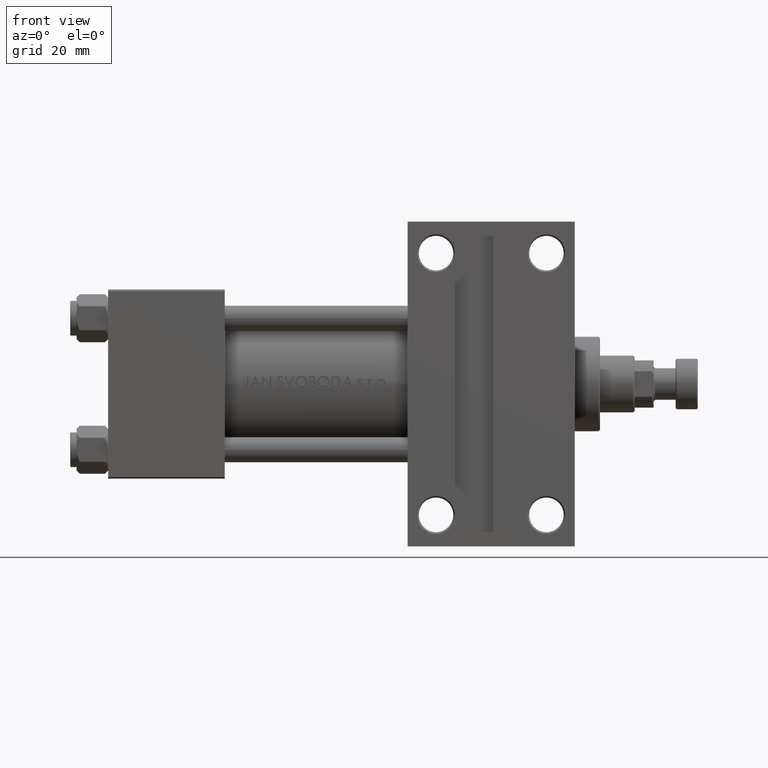
[diagram: clean part render]
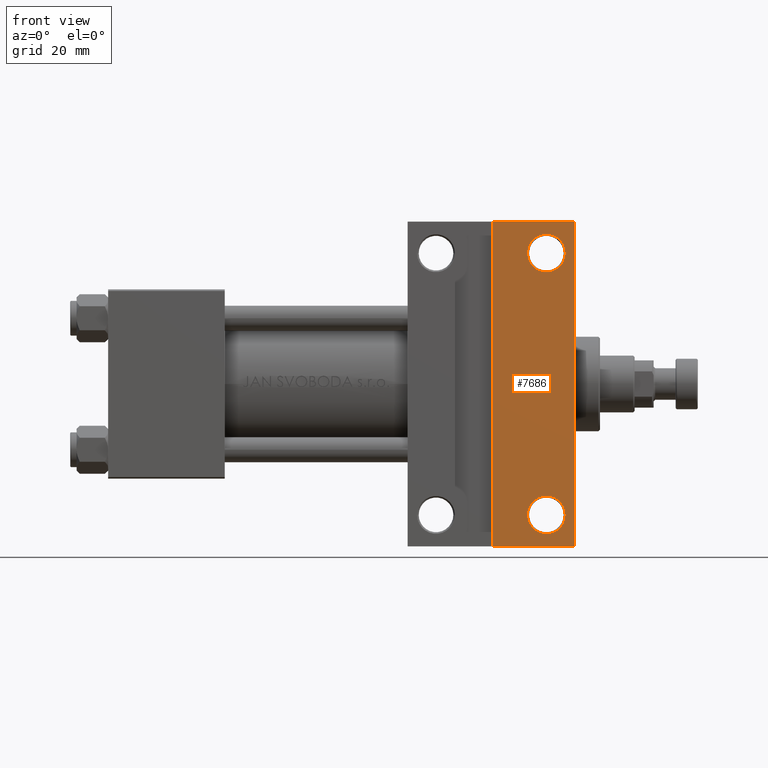
[diagram: same view with one face highlighted and labeled with its STEP entity id]
A machine part, front view. The second image highlights one B-rep face of the part: STEP entity #7686.
In plain terms, the highlighted planar face has unit normal (0, -1, -0).
Its self-contained STEP definition (entity closure, byte-faithful):
#470 = EDGE_CURVE ( 'NONE', #43863, #43570, #29945, .T. ) ;
#1043 = ORIENTED_EDGE ( 'NONE', *, *, #7008, .T. ) ;
#2409 = ORIENTED_EDGE ( 'NONE', *, *, #46670, .T. ) ;
#4368 = VERTEX_POINT ( 'NONE', #41086 ) ;
#5705 = EDGE_CURVE ( 'NONE', #43863, #46062, #18830, .T. ) ;
#5989 = CARTESIAN_POINT ( 'NONE',  ( 94.99999999999998579, -51.50000000000000711, -29.99999999999999645 ) ) ;
#6105 = DIRECTION ( 'NONE',  ( -0.000000000000000000, -1.156482317317871478E-16, 1.000000000000000000 ) ) ;
#7008 = EDGE_CURVE ( 'NONE', #45161, #4368, #12345, .T. ) ;
#7355 = AXIS2_PLACEMENT_3D ( 'NONE', #46388, #31975, #13056 ) ;
#7686 = ADVANCED_FACE ( 'NONE', ( #34189, #11782, #27204 ), #41887, .T. ) ;
#8244 = CIRCLE ( 'NONE', #36062, 5.999499999999990507 ) ;
#9198 = DIRECTION ( 'NONE',  ( -0.000000000000000000, -1.156482317317871478E-16, 1.000000000000000000 ) ) ;
#11659 = CARTESIAN_POINT ( 'NONE',  ( 133.0004999999999598, -41.50000000000000000, -30.00000000000000000 ) ) ;
#11782 = FACE_BOUND ( 'NONE', #23320, .T. ) ;
#12123 = AXIS2_PLACEMENT_3D ( 'NONE', #20894, #9198, #32100 ) ;
#12274 = DIRECTION ( 'NONE',  ( 0.000000000000000000, 1.000000000000000000, 1.156482317317871478E-16 ) ) ;
#12345 = CIRCLE ( 'NONE', #31386, 5.999499999999962974 ) ;
#13056 = DIRECTION ( 'NONE',  ( 0.000000000000000000, 1.000000000000000000, 0.000000000000000000 ) ) ;
#13891 = VECTOR ( 'NONE', #38213, 1000.000000000000000 ) ;
#14583 = ORIENTED_EDGE ( 'NONE', *, *, #39681, .T. ) ;
#14762 = AXIS2_PLACEMENT_3D ( 'NONE', #26956, #42125, #12274 ) ;
#15815 = VECTOR ( 'NONE', #36328, 1000.000000000000000 ) ;
#16492 = VERTEX_POINT ( 'NONE', #11659 ) ;
#16803 = CARTESIAN_POINT ( 'NONE',  ( 121.9999999999999858, -51.49999999999999289, -29.99999999999999645 ) ) ;
#18383 = ORIENTED_EDGE ( 'NONE', *, *, #23153, .T. ) ;
#18498 = CARTESIAN_POINT ( 'NONE',  ( 95.00000000000000000, 51.50000000000000711, -29.99999999999999645 ) ) ;
#18830 = LINE ( 'NONE', #34009, #13891 ) ;
#19888 = EDGE_CURVE ( 'NONE', #28436, #46062, #19980, .T. ) ;
#19980 = LINE ( 'NONE', #5989, #15815 ) ;
#20522 = DIRECTION ( 'NONE',  ( 0.000000000000000000, -1.000000000000000000, -1.156482317317871478E-16 ) ) ;
#20894 = CARTESIAN_POINT ( 'NONE',  ( 138.9999999999999432, -41.50000000000000000, -30.00000000000000000 ) ) ;
#23153 = EDGE_CURVE ( 'NONE', #43570, #28436, #39435, .T. ) ;
#23320 = EDGE_LOOP ( 'NONE', ( #14583, #2409 ) ) ;
#24723 = VECTOR ( 'NONE', #41615, 1000.000000000000000 ) ;
#25000 = CARTESIAN_POINT ( 'NONE',  ( 138.9999999999999432, -41.50000000000000000, -30.00000000000000000 ) ) ;
#25792 = CARTESIAN_POINT ( 'NONE',  ( 144.9994999999999550, -41.50000000000000000, -30.00000000000000000 ) ) ;
#26436 = ORIENTED_EDGE ( 'NONE', *, *, #470, .T. ) ;
#26956 = CARTESIAN_POINT ( 'NONE',  ( 148.0000000000000000, 30.00000000000000000, -29.99999999999999289 ) ) ;
#27204 = FACE_BOUND ( 'NONE', #47421, .T. ) ;
#27510 = CARTESIAN_POINT ( 'NONE',  ( 148.0000000000000000, 30.00000000000000000, -29.99999999999999289 ) ) ;
#28075 = CARTESIAN_POINT ( 'NONE',  ( 148.0000000000000000, 51.49999999999999289, -29.99999999999999645 ) ) ;
#28121 = CARTESIAN_POINT ( 'NONE',  ( 148.0000000000000000, -51.50000000000000711, -29.99999999999999645 ) ) ;
#28436 = VERTEX_POINT ( 'NONE', #28121 ) ;
#28933 = CARTESIAN_POINT ( 'NONE',  ( 133.0004999999999882, 41.50000000000000000, -29.99999999999999289 ) ) ;
#29930 = VERTEX_POINT ( 'NONE', #25792 ) ;
#29945 = LINE ( 'NONE', #18498, #24723 ) ;
#30387 = CIRCLE ( 'NONE', #7355, 5.999499999999962974 ) ;
#31386 = AXIS2_PLACEMENT_3D ( 'NONE', #31944, #34692, #42142 ) ;
#31944 = CARTESIAN_POINT ( 'NONE',  ( 138.9999999999999432, 41.50000000000000000, -29.99999999999999289 ) ) ;
#31975 = DIRECTION ( 'NONE',  ( -0.000000000000000000, -1.156482317317871478E-16, 1.000000000000000000 ) ) ;
#32100 = DIRECTION ( 'NONE',  ( 0.000000000000000000, 1.000000000000000000, 0.000000000000000000 ) ) ;
#34009 = CARTESIAN_POINT ( 'NONE',  ( 121.9999999999999858, -51.49999999999999289, -29.99999999999999645 ) ) ;
#34189 = FACE_OUTER_BOUND ( 'NONE', #38849, .T. ) ;
#34692 = DIRECTION ( 'NONE',  ( -0.000000000000000000, -1.156482317317871478E-16, 1.000000000000000000 ) ) ;
#35718 = ORIENTED_EDGE ( 'NONE', *, *, #39010, .T. ) ;
#36062 = AXIS2_PLACEMENT_3D ( 'NONE', #25000, #6105, #36440 ) ;
#36328 = DIRECTION ( 'NONE',  ( -1.000000000000000000, -0.000000000000000000, -0.000000000000000000 ) ) ;
#36440 = DIRECTION ( 'NONE',  ( 0.000000000000000000, 1.000000000000000000, 0.000000000000000000 ) ) ;
#37547 = CIRCLE ( 'NONE', #12123, 5.999499999999990507 ) ;
#38181 = VECTOR ( 'NONE', #20522, 1000.000000000000000 ) ;
#38213 = DIRECTION ( 'NONE',  ( -0.000000000000000000, -1.000000000000000000, -0.000000000000000000 ) ) ;
#38479 = ORIENTED_EDGE ( 'NONE', *, *, #5705, .F. ) ;
#38849 = EDGE_LOOP ( 'NONE', ( #38479, #26436, #18383, #44289 ) ) ;
#39010 = EDGE_CURVE ( 'NONE', #4368, #45161, #30387, .T. ) ;
#39435 = LINE ( 'NONE', #27510, #38181 ) ;
#39681 = EDGE_CURVE ( 'NONE', #16492, #29930, #37547, .T. ) ;
#41086 = CARTESIAN_POINT ( 'NONE',  ( 144.9994999999999266, 41.50000000000000000, -29.99999999999999289 ) ) ;
#41615 = DIRECTION ( 'NONE',  ( 1.000000000000000000, -2.618450529776313247E-16, 0.000000000000000000 ) ) ;
#41887 = PLANE ( 'NONE',  #14762 ) ;
#42125 = DIRECTION ( 'NONE',  ( 0.000000000000000000, 1.156482317317871478E-16, -1.000000000000000000 ) ) ;
#42142 = DIRECTION ( 'NONE',  ( 0.000000000000000000, 1.000000000000000000, 0.000000000000000000 ) ) ;
#43570 = VERTEX_POINT ( 'NONE', #28075 ) ;
#43863 = VERTEX_POINT ( 'NONE', #45669 ) ;
#44289 = ORIENTED_EDGE ( 'NONE', *, *, #19888, .T. ) ;
#45161 = VERTEX_POINT ( 'NONE', #28933 ) ;
#45669 = CARTESIAN_POINT ( 'NONE',  ( 121.9999999999999858, 51.50000000000000711, -29.99999999999999645 ) ) ;
#46062 = VERTEX_POINT ( 'NONE', #16803 ) ;
#46388 = CARTESIAN_POINT ( 'NONE',  ( 138.9999999999999432, 41.50000000000000000, -29.99999999999999289 ) ) ;
#46670 = EDGE_CURVE ( 'NONE', #29930, #16492, #8244, .T. ) ;
#47421 = EDGE_LOOP ( 'NONE', ( #1043, #35718 ) ) ;